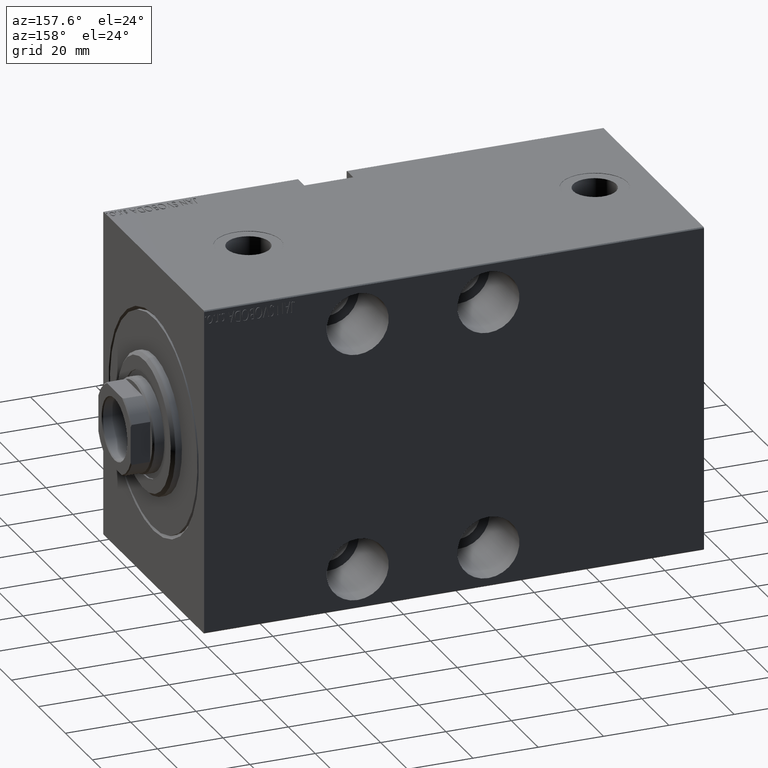
[diagram: clean part render]
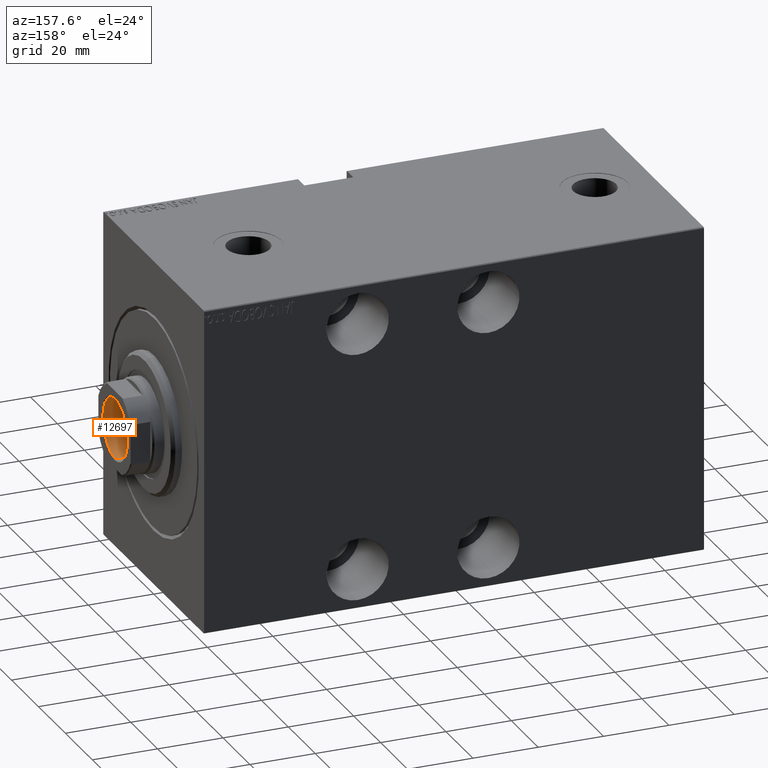
[diagram: same view with one face highlighted and labeled with its STEP entity id]
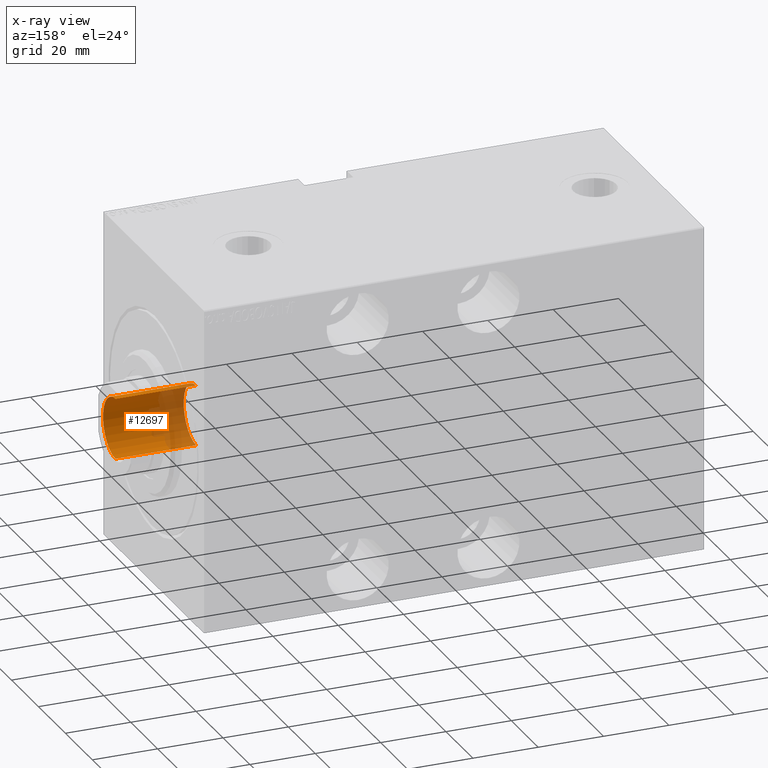
[diagram: x-ray of the same camera — body ghosted, the highlighted face saturated]
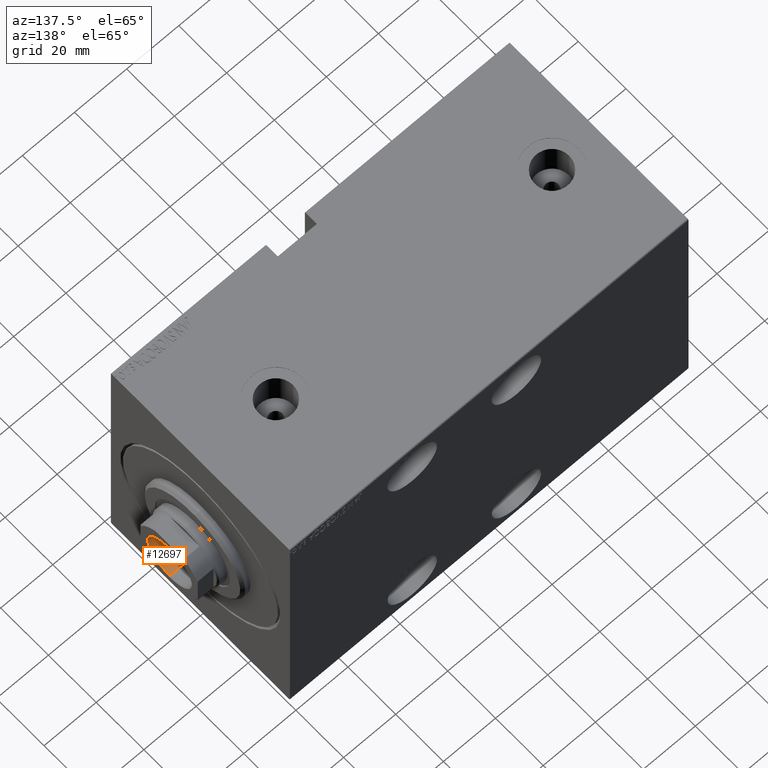
[diagram: same view with one face highlighted and labeled with its STEP entity id]
A machine part, auxiliary view. The second image highlights one B-rep face of the part: STEP entity #12697.
The next image is the same camera in x-ray: the body ghosted, the highlighted face saturated — about 44% of this face is hidden behind the body in this view.
A second angle (auxiliary view) of the same face is appended — the face is thin or edge-on in the first view.
In plain terms, the highlighted cylindrical surface (edge-blend (fillet) strip) has radius 9.25 mm, axis along (1, 0, -0).
Its self-contained STEP definition (entity closure, byte-faithful):
#493 = CIRCLE ( 'NONE', #6183, 9.249999999999994671 ) ;
#1551 = DIRECTION ( 'NONE',  ( -0.000000000000000000, -0.000000000000000000, 1.000000000000000000 ) ) ;
#1755 = VERTEX_POINT ( 'NONE', #39514 ) ;
#2488 = DIRECTION ( 'NONE',  ( 1.000000000000000000, 0.000000000000000000, 0.000000000000000000 ) ) ;
#3144 = EDGE_CURVE ( 'NONE', #13419, #17054, #22060, .T. ) ;
#3505 = DIRECTION ( 'NONE',  ( 1.000000000000000000, 0.000000000000000000, 0.000000000000000000 ) ) ;
#4224 = VECTOR ( 'NONE', #1551, 1000.000000000000000 ) ;
#4605 = CARTESIAN_POINT ( 'NONE',  ( -9.249999999999994671, 1.132798289211300909E-15, 151.0000000000000284 ) ) ;
#5759 = AXIS2_PLACEMENT_3D ( 'NONE', #43495, #13091, #36172 ) ;
#6183 = AXIS2_PLACEMENT_3D ( 'NONE', #26363, #12608, #3505 ) ;
#9095 = VERTEX_POINT ( 'NONE', #41229 ) ;
#9782 = ORIENTED_EDGE ( 'NONE', *, *, #3144, .T. ) ;
#11450 = ORIENTED_EDGE ( 'NONE', *, *, #35297, .T. ) ;
#11692 = LINE ( 'NONE', #4605, #43524 ) ;
#12608 = DIRECTION ( 'NONE',  ( -0.000000000000000000, -0.000000000000000000, 1.000000000000000000 ) ) ;
#12697 = ADVANCED_FACE ( 'NONE', ( #12905 ), #33315, .F. ) ;
#12905 = FACE_OUTER_BOUND ( 'NONE', #13601, .T. ) ;
#13091 = DIRECTION ( 'NONE',  ( 0.000000000000000000, 0.000000000000000000, 1.000000000000000000 ) ) ;
#13419 = VERTEX_POINT ( 'NONE', #39138 ) ;
#13601 = EDGE_LOOP ( 'NONE', ( #29795, #11450, #9782, #42479 ) ) ;
#17054 = VERTEX_POINT ( 'NONE', #40351 ) ;
#22060 = CIRCLE ( 'NONE', #5759, 9.249999999999994671 ) ;
#23348 = CARTESIAN_POINT ( 'NONE',  ( 0.000000000000000000, 0.000000000000000000, 151.0000000000000284 ) ) ;
#26363 = CARTESIAN_POINT ( 'NONE',  ( 0.000000000000000000, 0.000000000000000000, 126.0000000000000284 ) ) ;
#29795 = ORIENTED_EDGE ( 'NONE', *, *, #42891, .F. ) ;
#30697 = EDGE_CURVE ( 'NONE', #9095, #17054, #41282, .T. ) ;
#33315 = CYLINDRICAL_SURFACE ( 'NONE', #39991, 9.249999999999994671 ) ;
#35297 = EDGE_CURVE ( 'NONE', #1755, #13419, #11692, .T. ) ;
#35654 = DIRECTION ( 'NONE',  ( -0.000000000000000000, -0.000000000000000000, 1.000000000000000000 ) ) ;
#36172 = DIRECTION ( 'NONE',  ( 1.000000000000000000, 0.000000000000000000, 0.000000000000000000 ) ) ;
#37945 = CARTESIAN_POINT ( 'NONE',  ( 9.249999999999994671, 0.000000000000000000, 151.0000000000000284 ) ) ;
#39138 = CARTESIAN_POINT ( 'NONE',  ( -9.249999999999994671, 1.132798289211300909E-15, 150.7000000000000171 ) ) ;
#39514 = CARTESIAN_POINT ( 'NONE',  ( -9.249999999999994671, 1.132798289211300909E-15, 126.0000000000000284 ) ) ;
#39991 = AXIS2_PLACEMENT_3D ( 'NONE', #23348, #43751, #2488 ) ;
#40351 = CARTESIAN_POINT ( 'NONE',  ( 9.249999999999994671, 0.000000000000000000, 150.7000000000000171 ) ) ;
#41229 = CARTESIAN_POINT ( 'NONE',  ( 9.249999999999994671, 0.000000000000000000, 126.0000000000000284 ) ) ;
#41282 = LINE ( 'NONE', #37945, #4224 ) ;
#42479 = ORIENTED_EDGE ( 'NONE', *, *, #30697, .F. ) ;
#42891 = EDGE_CURVE ( 'NONE', #1755, #9095, #493, .T. ) ;
#43495 = CARTESIAN_POINT ( 'NONE',  ( 0.000000000000000000, 0.000000000000000000, 150.7000000000000171 ) ) ;
#43524 = VECTOR ( 'NONE', #35654, 1000.000000000000000 ) ;
#43751 = DIRECTION ( 'NONE',  ( -0.000000000000000000, -0.000000000000000000, 1.000000000000000000 ) ) ;